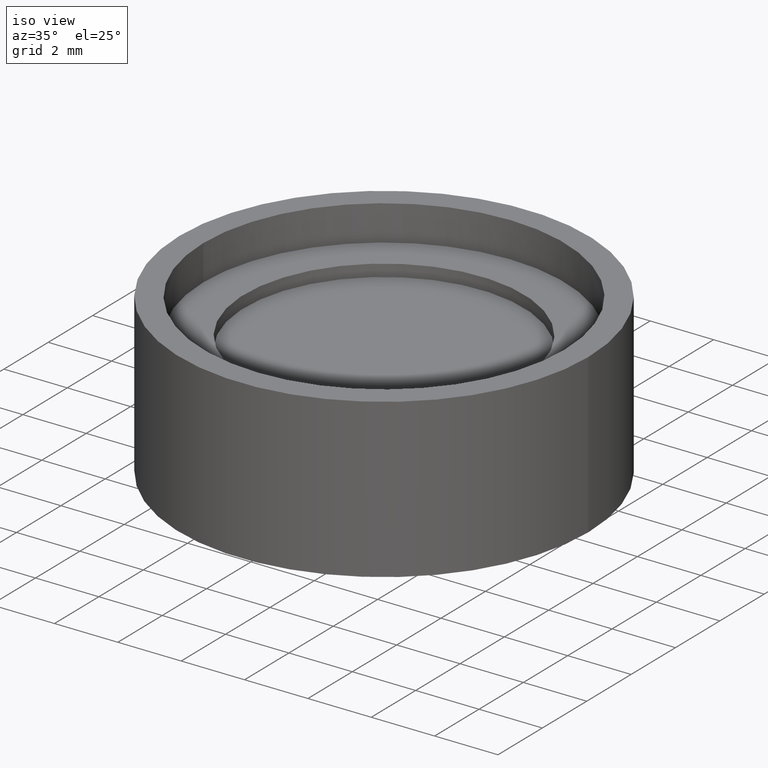
[diagram: clean part render]
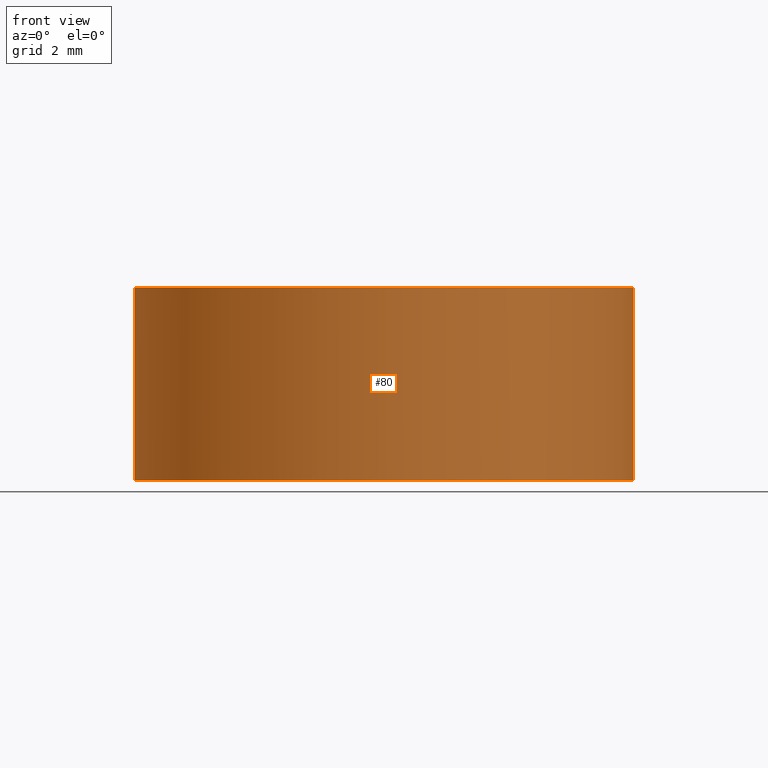
[diagram: tour spotlight — one face highlighted and labeled with its STEP entity id]
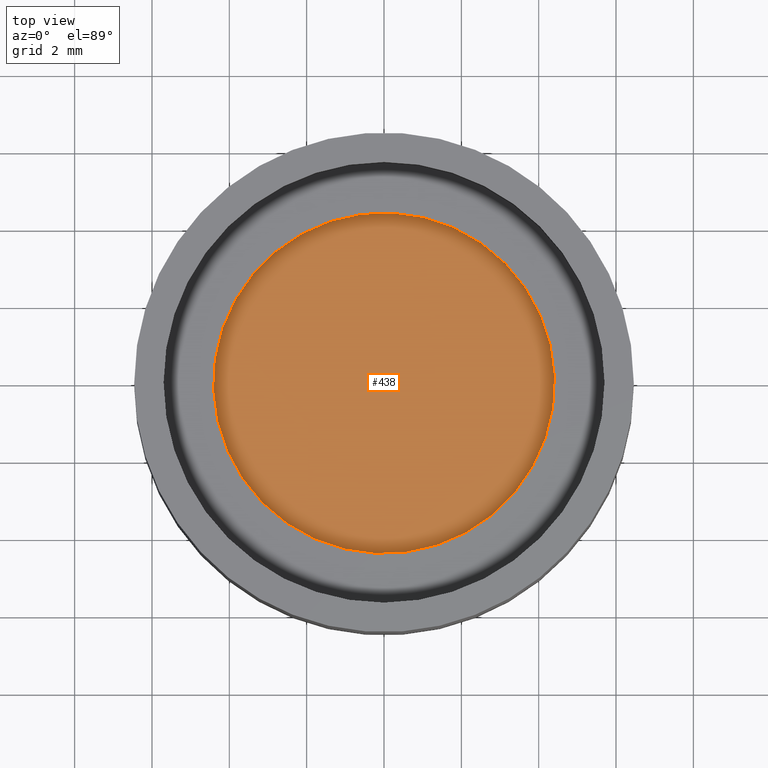
[diagram: tour spotlight — one face highlighted and labeled with its STEP entity id]
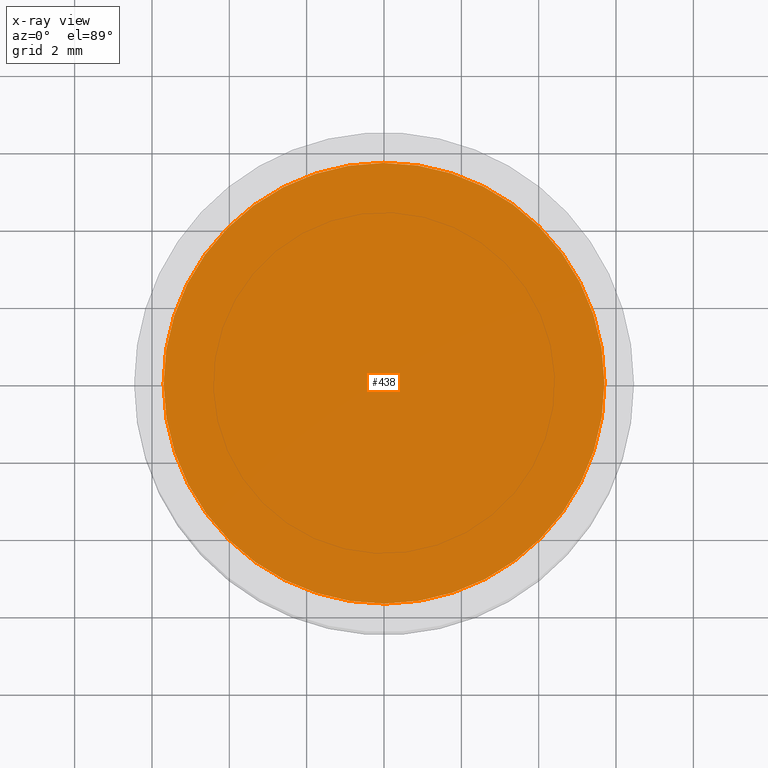
[diagram: x-ray of the same camera — body ghosted, this tour face saturated]
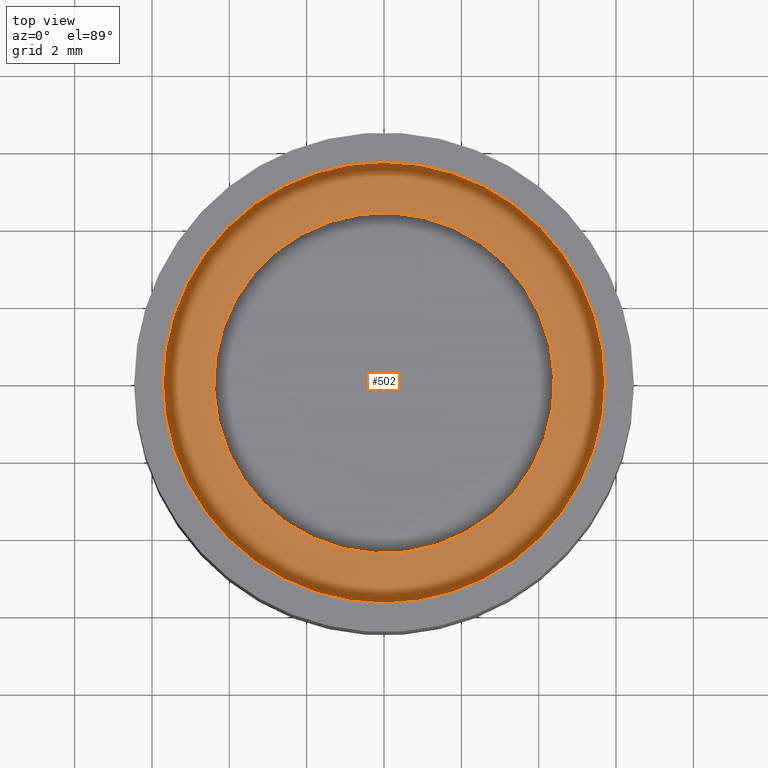
[diagram: tour spotlight — one face highlighted and labeled with its STEP entity id]
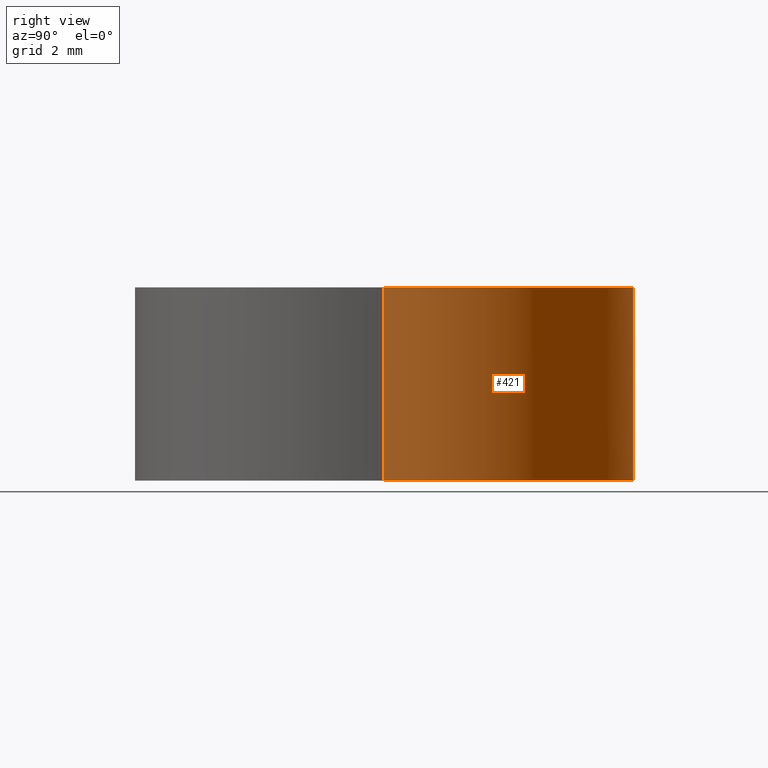
[diagram: tour spotlight — one face highlighted and labeled with its STEP entity id]
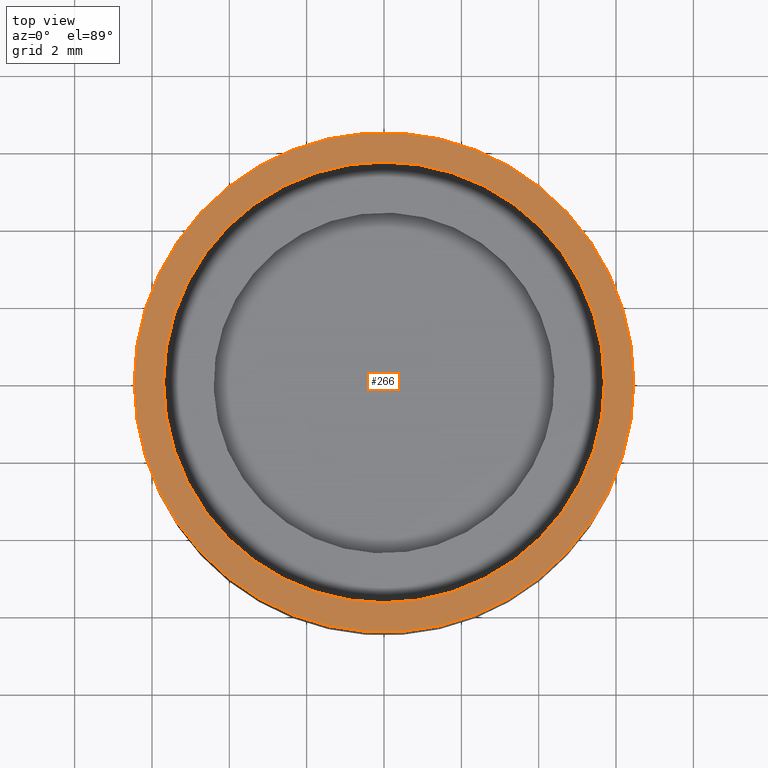
[diagram: tour spotlight — one face highlighted and labeled with its STEP entity id]
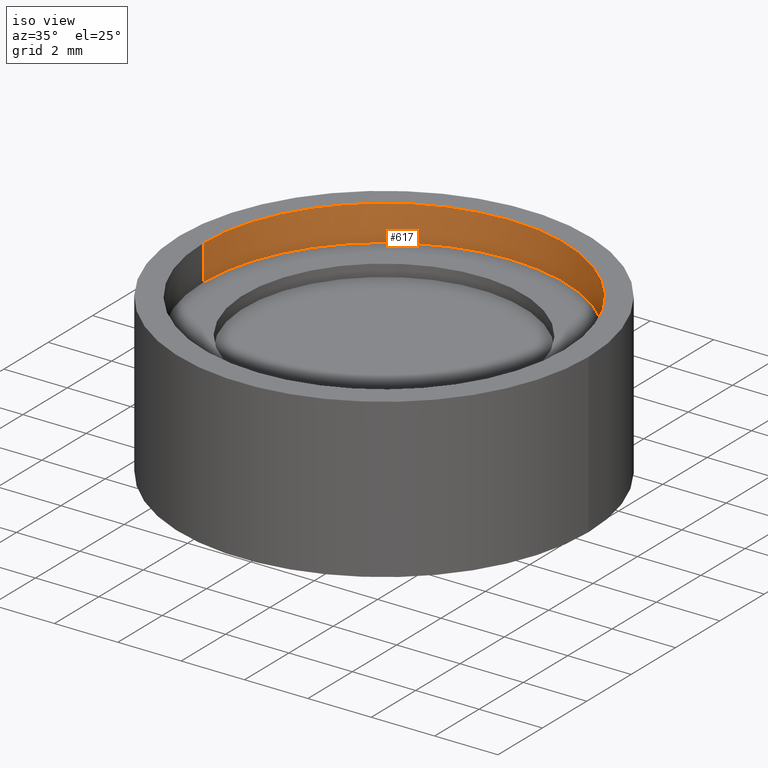
[diagram: tour spotlight — one face highlighted and labeled with its STEP entity id]
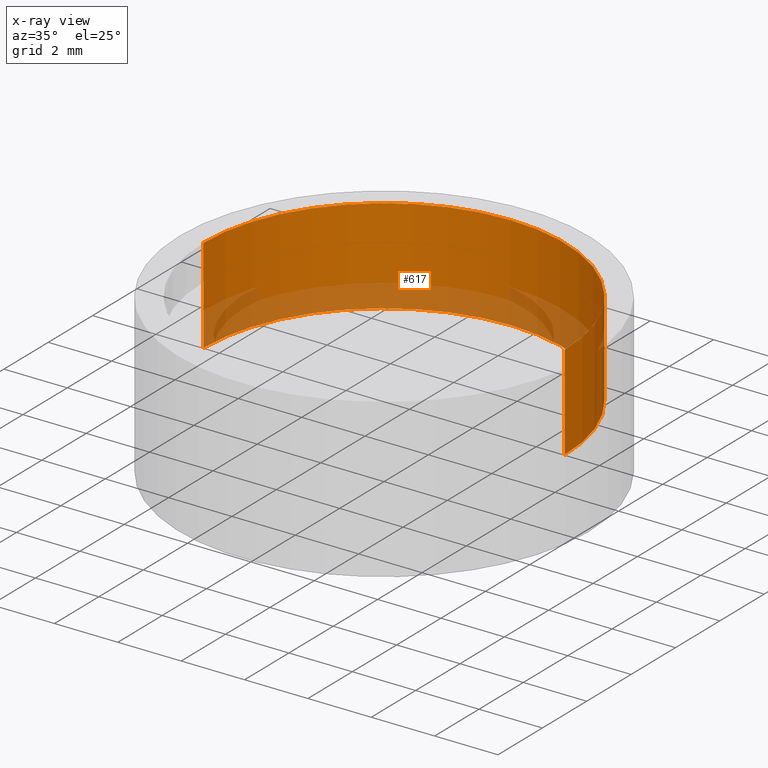
[diagram: x-ray of the same camera — body ghosted, this tour face saturated]
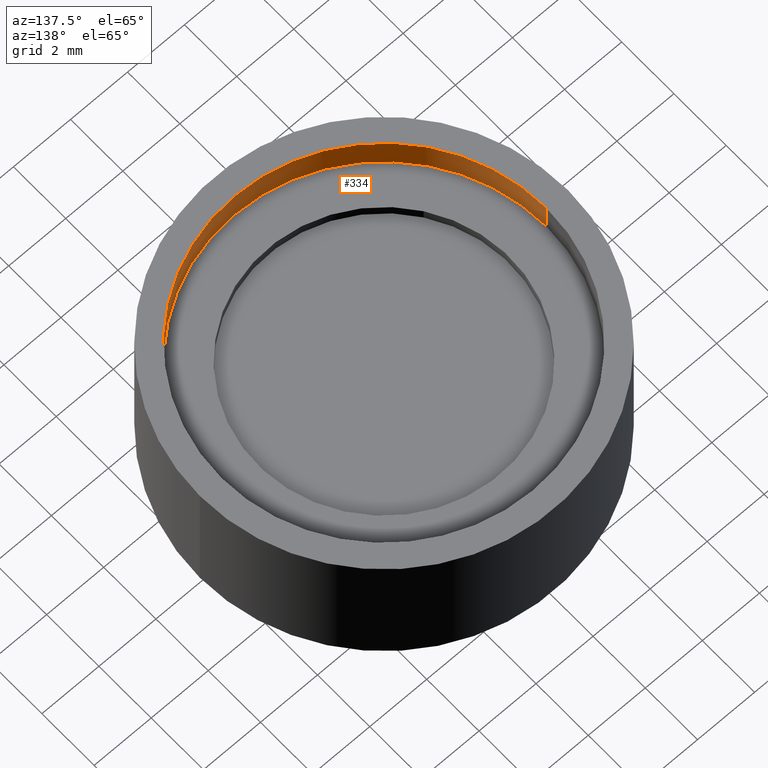
[diagram: tour spotlight — one face highlighted and labeled with its STEP entity id]
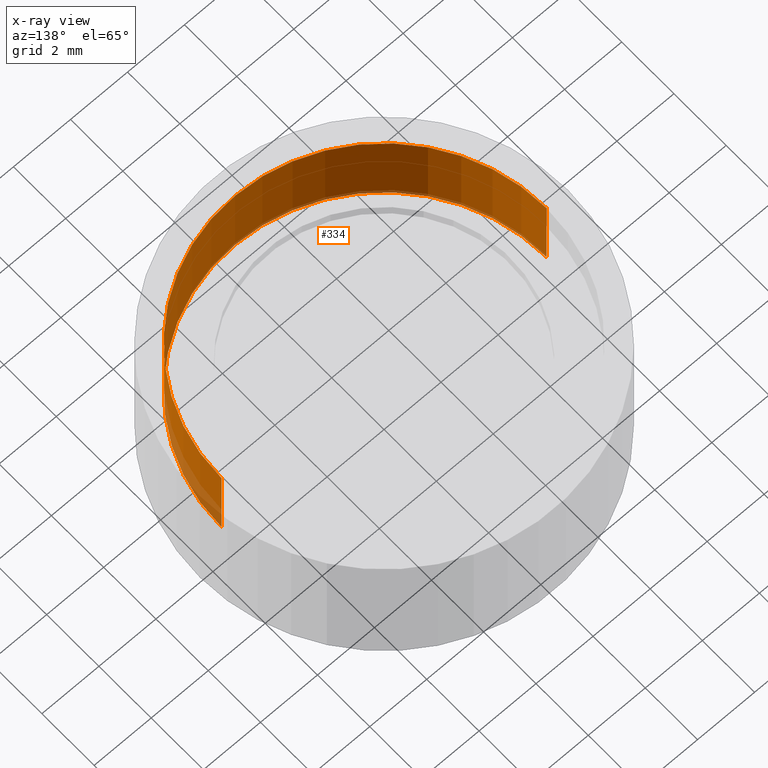
[diagram: x-ray of the same camera — body ghosted, this tour face saturated]
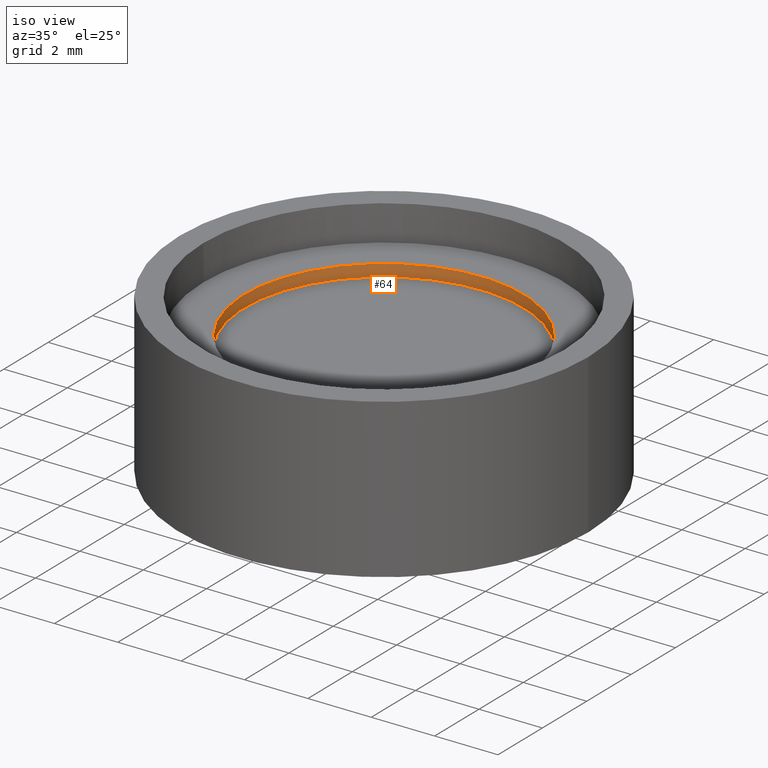
[diagram: tour spotlight — one face highlighted and labeled with its STEP entity id]
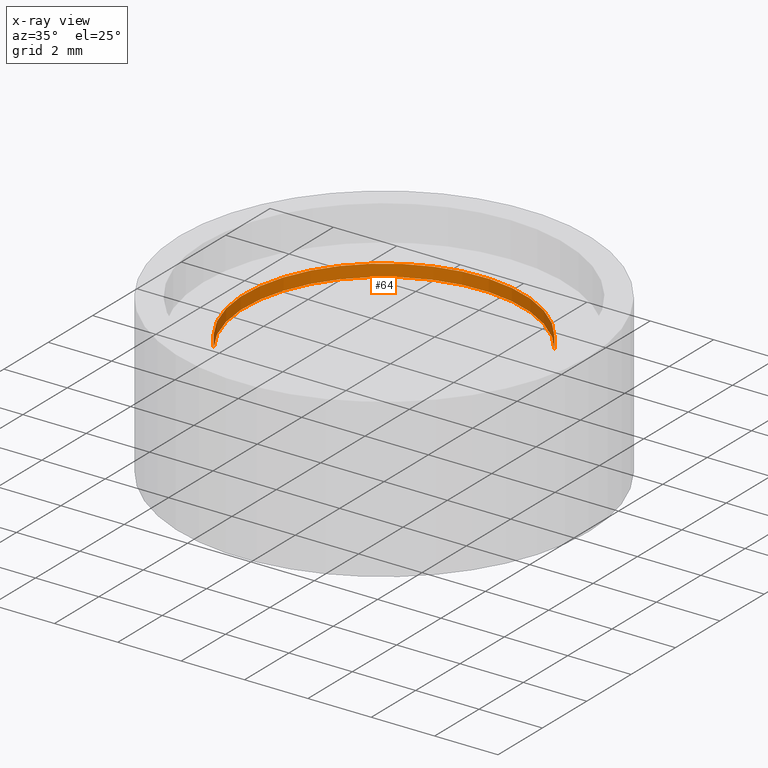
[diagram: x-ray of the same camera — body ghosted, this tour face saturated]
A machine part: a face-by-face anatomy tour. The part has 22 B-rep faces; the first image is the clean iso view, then the 8 largest visible faces are spotlighted one at a time (largest first), each with its STEP entity span.

Face 1 — front view, entity #80. In plain terms, the highlighted cylindrical surface (partial cylindrical patch) has radius 6.458 mm, axis along (-0, -0, -1).
Definition (entity closure, byte-faithful):
#19 = DIRECTION ( 'NONE',  ( -0.0000000000000000000, -0.0000000000000000000, -1.000000000000000000 ) ) ;
#35 = CYLINDRICAL_SURFACE ( 'NONE', #540, 6.458015859815825266 ) ;
#80 = ADVANCED_FACE ( 'NONE', ( #437 ), #35, .T. ) ;
#119 = EDGE_CURVE ( 'NONE', #293, #440, #479, .T. ) ;
#129 = ORIENTED_EDGE ( 'NONE', *, *, #179, .F. ) ;
#130 = DIRECTION ( 'NONE',  ( -1.000000000000000000, 0.0000000000000000000, 0.0000000000000000000 ) ) ;
#146 = ORIENTED_EDGE ( 'NONE', *, *, #196, .F. ) ;
#148 = EDGE_LOOP ( 'NONE', ( #129, #229, #333, #146 ) ) ;
#178 = DIRECTION ( 'NONE',  ( -0.0000000000000000000, -0.0000000000000000000, -1.000000000000000000 ) ) ;
#179 = EDGE_CURVE ( 'NONE', #293, #450, #422, .T. ) ;
#188 = CARTESIAN_POINT ( 'NONE',  ( -6.458015859815825266, 0.0000000000000000000, -1.695065087290339889 ) ) ;
#191 = DIRECTION ( 'NONE',  ( -1.000000000000000000, 0.0000000000000000000, 0.0000000000000000000 ) ) ;
#196 = EDGE_CURVE ( 'NONE', #450, #322, #571, .T. ) ;
#212 = EDGE_CURVE ( 'NONE', #440, #322, #640, .T. ) ;
#229 = ORIENTED_EDGE ( 'NONE', *, *, #119, .T. ) ;
#235 = CARTESIAN_POINT ( 'NONE',  ( 0.0000000000000000000, 0.0000000000000000000, 3.881000000000001560 ) ) ;
#239 = DIRECTION ( 'NONE',  ( -1.000000000000000000, 0.0000000000000000000, 0.0000000000000000000 ) ) ;
#242 = CARTESIAN_POINT ( 'NONE',  ( 0.0000000000000000000, 0.0000000000000000000, -1.695065087290339889 ) ) ;
#256 = CARTESIAN_POINT ( 'NONE',  ( 6.458015859815827042, 7.908788451566294723E-16, -1.118999999999997996 ) ) ;
#293 = VERTEX_POINT ( 'NONE', #465 ) ;
#322 = VERTEX_POINT ( 'NONE', #364 ) ;
#332 = CARTESIAN_POINT ( 'NONE',  ( 0.0000000000000000000, 0.0000000000000000000, -1.118999999999997996 ) ) ;
#333 = ORIENTED_EDGE ( 'NONE', *, *, #212, .T. ) ;
#364 = CARTESIAN_POINT ( 'NONE',  ( -6.458015859815826154, 0.0000000000000000000, -1.118999999999997996 ) ) ;
#383 = DIRECTION ( 'NONE',  ( -0.0000000000000000000, -0.0000000000000000000, -1.000000000000000000 ) ) ;
#422 = LINE ( 'NONE', #638, #522 ) ;
#424 = AXIS2_PLACEMENT_3D ( 'NONE', #332, #534, #239 ) ;
#437 = FACE_OUTER_BOUND ( 'NONE', #148, .T. ) ;
#440 = VERTEX_POINT ( 'NONE', #499 ) ;
#450 = VERTEX_POINT ( 'NONE', #256 ) ;
#454 = AXIS2_PLACEMENT_3D ( 'NONE', #235, #178, #130 ) ;
#465 = CARTESIAN_POINT ( 'NONE',  ( 6.458015859815825266, 7.908788451566292751E-16, 3.881000000000001560 ) ) ;
#467 = VECTOR ( 'NONE', #383, 1000.000000000000000 ) ;
#479 = CIRCLE ( 'NONE', #454, 6.458015859815825266 ) ;
#499 = CARTESIAN_POINT ( 'NONE',  ( -6.458015859815825266, 0.0000000000000000000, 3.881000000000001560 ) ) ;
#522 = VECTOR ( 'NONE', #19, 1000.000000000000000 ) ;
#534 = DIRECTION ( 'NONE',  ( -0.0000000000000000000, -0.0000000000000000000, -1.000000000000000000 ) ) ;
#540 = AXIS2_PLACEMENT_3D ( 'NONE', #242, #643, #191 ) ;
#571 = CIRCLE ( 'NONE', #424, 6.458015859815826154 ) ;
#638 = CARTESIAN_POINT ( 'NONE',  ( 6.458015859815825266, 7.908788451566292751E-16, -1.695065087290339889 ) ) ;
#640 = LINE ( 'NONE', #188, #467 ) ;
#643 = DIRECTION ( 'NONE',  ( -0.0000000000000000000, -0.0000000000000000000, -1.000000000000000000 ) ) ;

Face 2 — top view, entity #438. An x-ray twin of the same camera follows (body ghosted, this face saturated) — the face is partly hidden behind the body. In plain terms, the highlighted planar face has unit normal (0, -0, 1).
Definition (entity closure, byte-faithful):
#9 = CARTESIAN_POINT ( 'NONE',  ( 0.0000000000000000000, 0.0000000000000000000, 2.380999999999999339 ) ) ;
#45 = CARTESIAN_POINT ( 'NONE',  ( 0.0000000000000000000, 0.0000000000000000000, 2.380999999999999339 ) ) ;
#106 = DIRECTION ( 'NONE',  ( 0.8068447097065264417, 0.5907635858942145157, 0.0000000000000000000 ) ) ;
#143 = CIRCLE ( 'NONE', #458, 5.699999999999999289 ) ;
#149 = DIRECTION ( 'NONE',  ( 0.8068447097065265528, 0.5907635858942146267, 0.0000000000000000000 ) ) ;
#202 = DIRECTION ( 'NONE',  ( 0.8068447097065265528, 0.5907635858942146267, 0.0000000000000000000 ) ) ;
#209 = CARTESIAN_POINT ( 'NONE',  ( 0.0000000000000000000, 0.0000000000000000000, 2.380999999999999339 ) ) ;
#268 = FACE_OUTER_BOUND ( 'NONE', #594, .T. ) ;
#272 = VERTEX_POINT ( 'NONE', #457 ) ;
#307 = DIRECTION ( 'NONE',  ( 0.0000000000000000000, 0.0000000000000000000, 1.000000000000000000 ) ) ;
#310 = CIRCLE ( 'NONE', #481, 5.699999999999999289 ) ;
#357 = DIRECTION ( 'NONE',  ( 0.0000000000000000000, 0.0000000000000000000, 1.000000000000000000 ) ) ;
#359 = PLANE ( 'NONE',  #501 ) ;
#411 = EDGE_CURVE ( 'NONE', #496, #272, #310, .T. ) ;
#438 = ADVANCED_FACE ( 'NONE', ( #268 ), #359, .T. ) ;
#456 = ORIENTED_EDGE ( 'NONE', *, *, #411, .T. ) ;
#457 = CARTESIAN_POINT ( 'NONE',  ( -4.599014845327200618, -3.367352439597023128, 2.380999999999999339 ) ) ;
#458 = AXIS2_PLACEMENT_3D ( 'NONE', #45, #357, #149 ) ;
#481 = AXIS2_PLACEMENT_3D ( 'NONE', #209, #307, #202 ) ;
#496 = VERTEX_POINT ( 'NONE', #563 ) ;
#501 = AXIS2_PLACEMENT_3D ( 'NONE', #9, #558, #106 ) ;
#525 = ORIENTED_EDGE ( 'NONE', *, *, #561, .T. ) ;
#558 = DIRECTION ( 'NONE',  ( 0.0000000000000000000, -0.0000000000000000000, 1.000000000000000000 ) ) ;
#561 = EDGE_CURVE ( 'NONE', #272, #496, #143, .T. ) ;
#563 = CARTESIAN_POINT ( 'NONE',  ( 4.599014845327200618, 3.367352439597023572, 2.380999999999999339 ) ) ;
#594 = EDGE_LOOP ( 'NONE', ( #525, #456 ) ) ;

Face 3 — top view, entity #502. In plain terms, the highlighted planar face has unit normal (0, -0, 1).
Definition (entity closure, byte-faithful):
#28 = DIRECTION ( 'NONE',  ( 0.0000000000000000000, 0.0000000000000000000, 1.000000000000000000 ) ) ;
#32 = EDGE_CURVE ( 'NONE', #388, #641, #339, .T. ) ;
#59 = DIRECTION ( 'NONE',  ( 0.0000000000000000000, 0.0000000000000000000, 1.000000000000000000 ) ) ;
#68 = AXIS2_PLACEMENT_3D ( 'NONE', #446, #59, #652 ) ;
#72 = EDGE_CURVE ( 'NONE', #181, #529, #491, .T. ) ;
#76 = DIRECTION ( 'NONE',  ( 0.8284142084669521289, 0.5601159694296110603, 0.0000000000000000000 ) ) ;
#90 = DIRECTION ( 'NONE',  ( 0.8284142084669521289, 0.5601159694296110603, 0.0000000000000000000 ) ) ;
#101 = DIRECTION ( 'NONE',  ( 0.8284142084669522399, 0.5601159694296110603, 0.0000000000000000000 ) ) ;
#102 = EDGE_LOOP ( 'NONE', ( #198, #509 ) ) ;
#134 = EDGE_LOOP ( 'NONE', ( #420, #634 ) ) ;
#135 = DIRECTION ( 'NONE',  ( 0.0000000000000000000, 0.0000000000000000000, 1.000000000000000000 ) ) ;
#141 = DIRECTION ( 'NONE',  ( 0.8284142084669521289, 0.5601159694296110603, 0.0000000000000000000 ) ) ;
#150 = CARTESIAN_POINT ( 'NONE',  ( 0.0000000000000000000, 0.0000000000000000000, 2.762000000000000011 ) ) ;
#151 = EDGE_CURVE ( 'NONE', #529, #181, #168, .T. ) ;
#168 = CIRCLE ( 'NONE', #288, 4.406899999999999373 ) ;
#181 = VERTEX_POINT ( 'NONE', #185 ) ;
#185 = CARTESIAN_POINT ( 'NONE',  ( -3.650738575293011490, -2.468375065679352165, 2.762000000000000011 ) ) ;
#198 = ORIENTED_EDGE ( 'NONE', *, *, #497, .T. ) ;
#200 = FACE_OUTER_BOUND ( 'NONE', #102, .T. ) ;
#224 = CIRCLE ( 'NONE', #68, 5.714999999999998082 ) ;
#288 = AXIS2_PLACEMENT_3D ( 'NONE', #431, #135, #76 ) ;
#326 = CARTESIAN_POINT ( 'NONE',  ( 0.0000000000000000000, 0.0000000000000000000, 2.762000000000000011 ) ) ;
#339 = CIRCLE ( 'NONE', #413, 5.714999999999998082 ) ;
#349 = DIRECTION ( 'NONE',  ( 0.0000000000000000000, -0.0000000000000000000, 1.000000000000000000 ) ) ;
#382 = AXIS2_PLACEMENT_3D ( 'NONE', #150, #349, #101 ) ;
#388 = VERTEX_POINT ( 'NONE', #657 ) ;
#391 = CARTESIAN_POINT ( 'NONE',  ( 3.650738575293011046, 2.468375065679352609, 2.762000000000000011 ) ) ;
#393 = FACE_BOUND ( 'NONE', #134, .T. ) ;
#407 = CARTESIAN_POINT ( 'NONE',  ( 4.734387201388630118, 3.201062765290226153, 2.762000000000000011 ) ) ;
#413 = AXIS2_PLACEMENT_3D ( 'NONE', #326, #639, #141 ) ;
#420 = ORIENTED_EDGE ( 'NONE', *, *, #151, .F. ) ;
#431 = CARTESIAN_POINT ( 'NONE',  ( 0.0000000000000000000, 0.0000000000000000000, 2.762000000000000011 ) ) ;
#446 = CARTESIAN_POINT ( 'NONE',  ( 0.0000000000000000000, 0.0000000000000000000, 2.762000000000000011 ) ) ;
#466 = AXIS2_PLACEMENT_3D ( 'NONE', #537, #28, #90 ) ;
#491 = CIRCLE ( 'NONE', #466, 4.406899999999999373 ) ;
#497 = EDGE_CURVE ( 'NONE', #641, #388, #224, .T. ) ;
#502 = ADVANCED_FACE ( 'NONE', ( #200, #393 ), #599, .T. ) ;
#509 = ORIENTED_EDGE ( 'NONE', *, *, #32, .T. ) ;
#529 = VERTEX_POINT ( 'NONE', #391 ) ;
#537 = CARTESIAN_POINT ( 'NONE',  ( 0.0000000000000000000, 0.0000000000000000000, 2.762000000000000011 ) ) ;
#599 = PLANE ( 'NONE',  #382 ) ;
#634 = ORIENTED_EDGE ( 'NONE', *, *, #72, .F. ) ;
#639 = DIRECTION ( 'NONE',  ( 0.0000000000000000000, 0.0000000000000000000, 1.000000000000000000 ) ) ;
#641 = VERTEX_POINT ( 'NONE', #407 ) ;
#652 = DIRECTION ( 'NONE',  ( 0.8284142084669521289, 0.5601159694296110603, 0.0000000000000000000 ) ) ;
#657 = CARTESIAN_POINT ( 'NONE',  ( -4.734387201388630118, -3.201062765290225709, 2.762000000000000011 ) ) ;

Face 4 — right view, entity #421. In plain terms, the highlighted cylindrical surface (partial cylindrical patch) has radius 6.458 mm, axis along (-0, -0, -1).
Definition (entity closure, byte-faithful):
#19 = DIRECTION ( 'NONE',  ( -0.0000000000000000000, -0.0000000000000000000, -1.000000000000000000 ) ) ;
#111 = DIRECTION ( 'NONE',  ( -1.000000000000000000, 0.0000000000000000000, 0.0000000000000000000 ) ) ;
#115 = FACE_OUTER_BOUND ( 'NONE', #389, .T. ) ;
#157 = CARTESIAN_POINT ( 'NONE',  ( 0.0000000000000000000, 0.0000000000000000000, 3.881000000000001560 ) ) ;
#172 = CARTESIAN_POINT ( 'NONE',  ( 0.0000000000000000000, 0.0000000000000000000, -1.118999999999997996 ) ) ;
#179 = EDGE_CURVE ( 'NONE', #293, #450, #422, .T. ) ;
#187 = CIRCLE ( 'NONE', #352, 6.458015859815825266 ) ;
#188 = CARTESIAN_POINT ( 'NONE',  ( -6.458015859815825266, 0.0000000000000000000, -1.695065087290339889 ) ) ;
#212 = EDGE_CURVE ( 'NONE', #440, #322, #640, .T. ) ;
#256 = CARTESIAN_POINT ( 'NONE',  ( 6.458015859815827042, 7.908788451566294723E-16, -1.118999999999997996 ) ) ;
#260 = AXIS2_PLACEMENT_3D ( 'NONE', #314, #603, #354 ) ;
#293 = VERTEX_POINT ( 'NONE', #465 ) ;
#309 = CIRCLE ( 'NONE', #340, 6.458015859815826154 ) ;
#314 = CARTESIAN_POINT ( 'NONE',  ( 0.0000000000000000000, 0.0000000000000000000, -1.695065087290339889 ) ) ;
#322 = VERTEX_POINT ( 'NONE', #364 ) ;
#323 = EDGE_CURVE ( 'NONE', #322, #450, #309, .T. ) ;
#340 = AXIS2_PLACEMENT_3D ( 'NONE', #172, #559, #111 ) ;
#352 = AXIS2_PLACEMENT_3D ( 'NONE', #157, #355, #555 ) ;
#354 = DIRECTION ( 'NONE',  ( -1.000000000000000000, 0.0000000000000000000, 0.0000000000000000000 ) ) ;
#355 = DIRECTION ( 'NONE',  ( -0.0000000000000000000, -0.0000000000000000000, -1.000000000000000000 ) ) ;
#364 = CARTESIAN_POINT ( 'NONE',  ( -6.458015859815826154, 0.0000000000000000000, -1.118999999999997996 ) ) ;
#383 = DIRECTION ( 'NONE',  ( -0.0000000000000000000, -0.0000000000000000000, -1.000000000000000000 ) ) ;
#389 = EDGE_LOOP ( 'NONE', ( #442, #604, #493, #513 ) ) ;
#392 = EDGE_CURVE ( 'NONE', #440, #293, #187, .T. ) ;
#403 = CYLINDRICAL_SURFACE ( 'NONE', #260, 6.458015859815825266 ) ;
#421 = ADVANCED_FACE ( 'NONE', ( #115 ), #403, .T. ) ;
#422 = LINE ( 'NONE', #638, #522 ) ;
#440 = VERTEX_POINT ( 'NONE', #499 ) ;
#442 = ORIENTED_EDGE ( 'NONE', *, *, #392, .T. ) ;
#450 = VERTEX_POINT ( 'NONE', #256 ) ;
#465 = CARTESIAN_POINT ( 'NONE',  ( 6.458015859815825266, 7.908788451566292751E-16, 3.881000000000001560 ) ) ;
#467 = VECTOR ( 'NONE', #383, 1000.000000000000000 ) ;
#493 = ORIENTED_EDGE ( 'NONE', *, *, #323, .F. ) ;
#499 = CARTESIAN_POINT ( 'NONE',  ( -6.458015859815825266, 0.0000000000000000000, 3.881000000000001560 ) ) ;
#513 = ORIENTED_EDGE ( 'NONE', *, *, #212, .F. ) ;
#522 = VECTOR ( 'NONE', #19, 1000.000000000000000 ) ;
#555 = DIRECTION ( 'NONE',  ( -1.000000000000000000, 0.0000000000000000000, 0.0000000000000000000 ) ) ;
#559 = DIRECTION ( 'NONE',  ( -0.0000000000000000000, -0.0000000000000000000, -1.000000000000000000 ) ) ;
#603 = DIRECTION ( 'NONE',  ( -0.0000000000000000000, -0.0000000000000000000, -1.000000000000000000 ) ) ;
#604 = ORIENTED_EDGE ( 'NONE', *, *, #179, .T. ) ;
#638 = CARTESIAN_POINT ( 'NONE',  ( 6.458015859815825266, 7.908788451566292751E-16, -1.695065087290339889 ) ) ;
#640 = LINE ( 'NONE', #188, #467 ) ;

Face 5 — top view, entity #266. In plain terms, the highlighted planar face has unit normal (0, 0, 1).
Definition (entity closure, byte-faithful):
#30 = DIRECTION ( 'NONE',  ( -1.000000000000000000, 0.0000000000000000000, 0.0000000000000000000 ) ) ;
#75 = ORIENTED_EDGE ( 'NONE', *, *, #173, .T. ) ;
#119 = EDGE_CURVE ( 'NONE', #293, #440, #479, .T. ) ;
#130 = DIRECTION ( 'NONE',  ( -1.000000000000000000, 0.0000000000000000000, 0.0000000000000000000 ) ) ;
#138 = DIRECTION ( 'NONE',  ( -1.000000000000000000, 0.0000000000000000000, 0.0000000000000000000 ) ) ;
#157 = CARTESIAN_POINT ( 'NONE',  ( 0.0000000000000000000, 0.0000000000000000000, 3.881000000000001560 ) ) ;
#173 = EDGE_CURVE ( 'NONE', #387, #345, #498, .T. ) ;
#178 = DIRECTION ( 'NONE',  ( -0.0000000000000000000, -0.0000000000000000000, -1.000000000000000000 ) ) ;
#187 = CIRCLE ( 'NONE', #352, 6.458015859815825266 ) ;
#192 = EDGE_CURVE ( 'NONE', #345, #387, #241, .T. ) ;
#195 = AXIS2_PLACEMENT_3D ( 'NONE', #377, #325, #138 ) ;
#211 = DIRECTION ( 'NONE',  ( 0.0000000000000000000, 0.0000000000000000000, 1.000000000000000000 ) ) ;
#221 = AXIS2_PLACEMENT_3D ( 'NONE', #486, #584, #30 ) ;
#223 = AXIS2_PLACEMENT_3D ( 'NONE', #567, #211, #520 ) ;
#235 = CARTESIAN_POINT ( 'NONE',  ( 0.0000000000000000000, 0.0000000000000000000, 3.881000000000001560 ) ) ;
#241 = CIRCLE ( 'NONE', #195, 5.699999999999999289 ) ;
#258 = PLANE ( 'NONE',  #223 ) ;
#266 = ADVANCED_FACE ( 'NONE', ( #462, #360 ), #258, .T. ) ;
#290 = ORIENTED_EDGE ( 'NONE', *, *, #392, .F. ) ;
#293 = VERTEX_POINT ( 'NONE', #465 ) ;
#294 = EDGE_LOOP ( 'NONE', ( #460, #75 ) ) ;
#325 = DIRECTION ( 'NONE',  ( -0.0000000000000000000, -0.0000000000000000000, -1.000000000000000000 ) ) ;
#345 = VERTEX_POINT ( 'NONE', #368 ) ;
#352 = AXIS2_PLACEMENT_3D ( 'NONE', #157, #355, #555 ) ;
#355 = DIRECTION ( 'NONE',  ( -0.0000000000000000000, -0.0000000000000000000, -1.000000000000000000 ) ) ;
#360 = FACE_OUTER_BOUND ( 'NONE', #575, .T. ) ;
#368 = CARTESIAN_POINT ( 'NONE',  ( -5.699999999999999289, 0.0000000000000000000, 3.881000000000001560 ) ) ;
#377 = CARTESIAN_POINT ( 'NONE',  ( 0.0000000000000000000, 0.0000000000000000000, 3.881000000000001560 ) ) ;
#387 = VERTEX_POINT ( 'NONE', #451 ) ;
#392 = EDGE_CURVE ( 'NONE', #440, #293, #187, .T. ) ;
#440 = VERTEX_POINT ( 'NONE', #499 ) ;
#451 = CARTESIAN_POINT ( 'NONE',  ( 5.699999999999999289, 6.980486755139912122E-16, 3.881000000000001560 ) ) ;
#454 = AXIS2_PLACEMENT_3D ( 'NONE', #235, #178, #130 ) ;
#460 = ORIENTED_EDGE ( 'NONE', *, *, #192, .T. ) ;
#462 = FACE_BOUND ( 'NONE', #294, .T. ) ;
#465 = CARTESIAN_POINT ( 'NONE',  ( 6.458015859815825266, 7.908788451566292751E-16, 3.881000000000001560 ) ) ;
#479 = CIRCLE ( 'NONE', #454, 6.458015859815825266 ) ;
#486 = CARTESIAN_POINT ( 'NONE',  ( 0.0000000000000000000, 0.0000000000000000000, 3.881000000000001560 ) ) ;
#498 = CIRCLE ( 'NONE', #221, 5.699999999999999289 ) ;
#499 = CARTESIAN_POINT ( 'NONE',  ( -6.458015859815825266, 0.0000000000000000000, 3.881000000000001560 ) ) ;
#505 = ORIENTED_EDGE ( 'NONE', *, *, #119, .F. ) ;
#520 = DIRECTION ( 'NONE',  ( 1.000000000000000000, 0.0000000000000000000, -0.0000000000000000000 ) ) ;
#555 = DIRECTION ( 'NONE',  ( -1.000000000000000000, 0.0000000000000000000, 0.0000000000000000000 ) ) ;
#567 = CARTESIAN_POINT ( 'NONE',  ( -6.458015859815825266, 0.0000000000000000000, 3.881000000000002004 ) ) ;
#575 = EDGE_LOOP ( 'NONE', ( #290, #505 ) ) ;
#584 = DIRECTION ( 'NONE',  ( -0.0000000000000000000, -0.0000000000000000000, -1.000000000000000000 ) ) ;

Face 6 — iso view, entity #617. An x-ray twin of the same camera follows (body ghosted, this face saturated) — the face is partly hidden behind the body. In plain terms, the highlighted cylindrical surface (partial cylindrical patch) has radius 5.7 mm, axis along (-0, -0, -1).
Definition (entity closure, byte-faithful):
#38 = VERTEX_POINT ( 'NONE', #490 ) ;
#39 = ORIENTED_EDGE ( 'NONE', *, *, #406, .T. ) ;
#42 = VECTOR ( 'NONE', #215, 1000.000000000000000 ) ;
#46 = LINE ( 'NONE', #165, #444 ) ;
#48 = DIRECTION ( 'NONE',  ( -0.0000000000000000000, -0.0000000000000000000, -1.000000000000000000 ) ) ;
#62 = FACE_OUTER_BOUND ( 'NONE', #495, .T. ) ;
#120 = CARTESIAN_POINT ( 'NONE',  ( -5.700000000000000178, 0.0000000000000000000, 0.8809999999999997833 ) ) ;
#126 = AXIS2_PLACEMENT_3D ( 'NONE', #213, #48, #250 ) ;
#131 = ORIENTED_EDGE ( 'NONE', *, *, #192, .F. ) ;
#138 = DIRECTION ( 'NONE',  ( -1.000000000000000000, 0.0000000000000000000, 0.0000000000000000000 ) ) ;
#165 = CARTESIAN_POINT ( 'NONE',  ( -5.700000000000000178, 0.0000000000000000000, -1.695065087290339889 ) ) ;
#192 = EDGE_CURVE ( 'NONE', #345, #387, #241, .T. ) ;
#195 = AXIS2_PLACEMENT_3D ( 'NONE', #377, #325, #138 ) ;
#213 = CARTESIAN_POINT ( 'NONE',  ( 0.0000000000000000000, 0.0000000000000000000, -1.695065087290339889 ) ) ;
#215 = DIRECTION ( 'NONE',  ( -0.0000000000000000000, -0.0000000000000000000, -1.000000000000000000 ) ) ;
#216 = DIRECTION ( 'NONE',  ( -0.0000000000000000000, -0.0000000000000000000, -1.000000000000000000 ) ) ;
#241 = CIRCLE ( 'NONE', #195, 5.699999999999999289 ) ;
#250 = DIRECTION ( 'NONE',  ( -1.000000000000000000, 0.0000000000000000000, 0.0000000000000000000 ) ) ;
#263 = LINE ( 'NONE', #461, #42 ) ;
#276 = ORIENTED_EDGE ( 'NONE', *, *, #488, .F. ) ;
#317 = CARTESIAN_POINT ( 'NONE',  ( 0.0000000000000000000, 0.0000000000000000000, 0.8809999999999997833 ) ) ;
#325 = DIRECTION ( 'NONE',  ( -0.0000000000000000000, -0.0000000000000000000, -1.000000000000000000 ) ) ;
#345 = VERTEX_POINT ( 'NONE', #368 ) ;
#368 = CARTESIAN_POINT ( 'NONE',  ( -5.699999999999999289, 0.0000000000000000000, 3.881000000000001560 ) ) ;
#371 = VERTEX_POINT ( 'NONE', #120 ) ;
#374 = EDGE_CURVE ( 'NONE', #371, #38, #619, .T. ) ;
#377 = CARTESIAN_POINT ( 'NONE',  ( 0.0000000000000000000, 0.0000000000000000000, 3.881000000000001560 ) ) ;
#387 = VERTEX_POINT ( 'NONE', #451 ) ;
#401 = CYLINDRICAL_SURFACE ( 'NONE', #126, 5.700000000000000178 ) ;
#406 = EDGE_CURVE ( 'NONE', #345, #371, #46, .T. ) ;
#416 = AXIS2_PLACEMENT_3D ( 'NONE', #317, #216, #615 ) ;
#444 = VECTOR ( 'NONE', #464, 1000.000000000000000 ) ;
#451 = CARTESIAN_POINT ( 'NONE',  ( 5.699999999999999289, 6.980486755139912122E-16, 3.881000000000001560 ) ) ;
#461 = CARTESIAN_POINT ( 'NONE',  ( 5.700000000000000178, 6.980486755139913108E-16, -1.695065087290339889 ) ) ;
#464 = DIRECTION ( 'NONE',  ( -0.0000000000000000000, -0.0000000000000000000, -1.000000000000000000 ) ) ;
#488 = EDGE_CURVE ( 'NONE', #387, #38, #263, .T. ) ;
#490 = CARTESIAN_POINT ( 'NONE',  ( 5.700000000000000178, 6.980486755139913108E-16, 0.8809999999999997833 ) ) ;
#495 = EDGE_LOOP ( 'NONE', ( #276, #131, #39, #562 ) ) ;
#562 = ORIENTED_EDGE ( 'NONE', *, *, #374, .T. ) ;
#615 = DIRECTION ( 'NONE',  ( -1.000000000000000000, 0.0000000000000000000, 0.0000000000000000000 ) ) ;
#617 = ADVANCED_FACE ( 'NONE', ( #62 ), #401, .F. ) ;
#619 = CIRCLE ( 'NONE', #416, 5.700000000000000178 ) ;

Face 7 — auxiliary view, entity #334. An x-ray twin of the same camera follows (body ghosted, this face saturated) — the face is partly hidden behind the body. In plain terms, the highlighted cylindrical surface (partial cylindrical patch) has radius 5.7 mm, axis along (-0, -0, -1).
Definition (entity closure, byte-faithful):
#30 = DIRECTION ( 'NONE',  ( -1.000000000000000000, 0.0000000000000000000, 0.0000000000000000000 ) ) ;
#37 = ORIENTED_EDGE ( 'NONE', *, *, #173, .F. ) ;
#38 = VERTEX_POINT ( 'NONE', #490 ) ;
#41 = AXIS2_PLACEMENT_3D ( 'NONE', #142, #186, #539 ) ;
#42 = VECTOR ( 'NONE', #215, 1000.000000000000000 ) ;
#46 = LINE ( 'NONE', #165, #444 ) ;
#57 = CYLINDRICAL_SURFACE ( 'NONE', #365, 5.700000000000000178 ) ;
#92 = EDGE_CURVE ( 'NONE', #38, #371, #627, .T. ) ;
#120 = CARTESIAN_POINT ( 'NONE',  ( -5.700000000000000178, 0.0000000000000000000, 0.8809999999999997833 ) ) ;
#142 = CARTESIAN_POINT ( 'NONE',  ( 0.0000000000000000000, 0.0000000000000000000, 0.8809999999999997833 ) ) ;
#165 = CARTESIAN_POINT ( 'NONE',  ( -5.700000000000000178, 0.0000000000000000000, -1.695065087290339889 ) ) ;
#173 = EDGE_CURVE ( 'NONE', #387, #345, #498, .T. ) ;
#186 = DIRECTION ( 'NONE',  ( -0.0000000000000000000, -0.0000000000000000000, -1.000000000000000000 ) ) ;
#215 = DIRECTION ( 'NONE',  ( -0.0000000000000000000, -0.0000000000000000000, -1.000000000000000000 ) ) ;
#221 = AXIS2_PLACEMENT_3D ( 'NONE', #486, #584, #30 ) ;
#253 = CARTESIAN_POINT ( 'NONE',  ( 0.0000000000000000000, 0.0000000000000000000, -1.695065087290339889 ) ) ;
#263 = LINE ( 'NONE', #461, #42 ) ;
#265 = DIRECTION ( 'NONE',  ( -0.0000000000000000000, -0.0000000000000000000, -1.000000000000000000 ) ) ;
#306 = EDGE_LOOP ( 'NONE', ( #37, #358, #597, #434 ) ) ;
#334 = ADVANCED_FACE ( 'NONE', ( #516 ), #57, .F. ) ;
#345 = VERTEX_POINT ( 'NONE', #368 ) ;
#358 = ORIENTED_EDGE ( 'NONE', *, *, #488, .T. ) ;
#365 = AXIS2_PLACEMENT_3D ( 'NONE', #253, #265, #511 ) ;
#368 = CARTESIAN_POINT ( 'NONE',  ( -5.699999999999999289, 0.0000000000000000000, 3.881000000000001560 ) ) ;
#371 = VERTEX_POINT ( 'NONE', #120 ) ;
#387 = VERTEX_POINT ( 'NONE', #451 ) ;
#406 = EDGE_CURVE ( 'NONE', #345, #371, #46, .T. ) ;
#434 = ORIENTED_EDGE ( 'NONE', *, *, #406, .F. ) ;
#444 = VECTOR ( 'NONE', #464, 1000.000000000000000 ) ;
#451 = CARTESIAN_POINT ( 'NONE',  ( 5.699999999999999289, 6.980486755139912122E-16, 3.881000000000001560 ) ) ;
#461 = CARTESIAN_POINT ( 'NONE',  ( 5.700000000000000178, 6.980486755139913108E-16, -1.695065087290339889 ) ) ;
#464 = DIRECTION ( 'NONE',  ( -0.0000000000000000000, -0.0000000000000000000, -1.000000000000000000 ) ) ;
#486 = CARTESIAN_POINT ( 'NONE',  ( 0.0000000000000000000, 0.0000000000000000000, 3.881000000000001560 ) ) ;
#488 = EDGE_CURVE ( 'NONE', #387, #38, #263, .T. ) ;
#490 = CARTESIAN_POINT ( 'NONE',  ( 5.700000000000000178, 6.980486755139913108E-16, 0.8809999999999997833 ) ) ;
#498 = CIRCLE ( 'NONE', #221, 5.699999999999999289 ) ;
#511 = DIRECTION ( 'NONE',  ( -1.000000000000000000, 0.0000000000000000000, 0.0000000000000000000 ) ) ;
#516 = FACE_OUTER_BOUND ( 'NONE', #306, .T. ) ;
#539 = DIRECTION ( 'NONE',  ( -1.000000000000000000, 0.0000000000000000000, 0.0000000000000000000 ) ) ;
#584 = DIRECTION ( 'NONE',  ( -0.0000000000000000000, -0.0000000000000000000, -1.000000000000000000 ) ) ;
#597 = ORIENTED_EDGE ( 'NONE', *, *, #92, .T. ) ;
#627 = CIRCLE ( 'NONE', #41, 5.700000000000000178 ) ;

Face 8 — iso view, entity #64. An x-ray twin of the same camera follows (body ghosted, this face saturated) — the face is partly hidden behind the body. In plain terms, the highlighted cylindrical surface (partial cylindrical patch) has radius 4.4069 mm, axis along (0, 0, 1).
Definition (entity closure, byte-faithful):
#1 = VERTEX_POINT ( 'NONE', #535 ) ;
#52 = DIRECTION ( 'NONE',  ( 0.0000000000000000000, 0.0000000000000000000, 1.000000000000000000 ) ) ;
#64 = ADVANCED_FACE ( 'NONE', ( #527 ), #286, .F. ) ;
#66 = VECTOR ( 'NONE', #630, 1000.000000000000000 ) ;
#76 = DIRECTION ( 'NONE',  ( 0.8284142084669521289, 0.5601159694296110603, 0.0000000000000000000 ) ) ;
#77 = DIRECTION ( 'NONE',  ( 0.0000000000000000000, 0.0000000000000000000, 1.000000000000000000 ) ) ;
#135 = DIRECTION ( 'NONE',  ( 0.0000000000000000000, 0.0000000000000000000, 1.000000000000000000 ) ) ;
#151 = EDGE_CURVE ( 'NONE', #529, #181, #168, .T. ) ;
#152 = ORIENTED_EDGE ( 'NONE', *, *, #169, .T. ) ;
#168 = CIRCLE ( 'NONE', #288, 4.406899999999999373 ) ;
#169 = EDGE_CURVE ( 'NONE', #1, #529, #182, .T. ) ;
#175 = ORIENTED_EDGE ( 'NONE', *, *, #271, .F. ) ;
#181 = VERTEX_POINT ( 'NONE', #185 ) ;
#182 = LINE ( 'NONE', #577, #66 ) ;
#185 = CARTESIAN_POINT ( 'NONE',  ( -3.650738575293011490, -2.468375065679352165, 2.762000000000000011 ) ) ;
#219 = CARTESIAN_POINT ( 'NONE',  ( 0.0000000000000000000, 0.0000000000000000000, 2.381000000000000227 ) ) ;
#252 = VERTEX_POINT ( 'NONE', #338 ) ;
#271 = EDGE_CURVE ( 'NONE', #1, #252, #564, .T. ) ;
#283 = CARTESIAN_POINT ( 'NONE',  ( 0.0000000000000000000, 0.0000000000000000000, 2.381000000000000227 ) ) ;
#286 = CYLINDRICAL_SURFACE ( 'NONE', #348, 4.406899999999999373 ) ;
#288 = AXIS2_PLACEMENT_3D ( 'NONE', #431, #135, #76 ) ;
#292 = ORIENTED_EDGE ( 'NONE', *, *, #474, .F. ) ;
#336 = DIRECTION ( 'NONE',  ( 0.8284142084669521289, 0.5601159694296110603, 0.0000000000000000000 ) ) ;
#338 = CARTESIAN_POINT ( 'NONE',  ( -3.650738575293011490, -2.468375065679352165, 2.381000000000000227 ) ) ;
#348 = AXIS2_PLACEMENT_3D ( 'NONE', #283, #77, #336 ) ;
#391 = CARTESIAN_POINT ( 'NONE',  ( 3.650738575293011046, 2.468375065679352609, 2.762000000000000011 ) ) ;
#414 = DIRECTION ( 'NONE',  ( 0.8284142084669521289, 0.5601159694296110603, 0.0000000000000000000 ) ) ;
#426 = EDGE_LOOP ( 'NONE', ( #292, #175, #152, #453 ) ) ;
#431 = CARTESIAN_POINT ( 'NONE',  ( 0.0000000000000000000, 0.0000000000000000000, 2.762000000000000011 ) ) ;
#453 = ORIENTED_EDGE ( 'NONE', *, *, #151, .T. ) ;
#474 = EDGE_CURVE ( 'NONE', #252, #181, #504, .T. ) ;
#504 = LINE ( 'NONE', #510, #533 ) ;
#510 = CARTESIAN_POINT ( 'NONE',  ( -3.650738575293011490, -2.468375065679352165, 2.381000000000000227 ) ) ;
#518 = DIRECTION ( 'NONE',  ( 0.0000000000000000000, 0.0000000000000000000, 1.000000000000000000 ) ) ;
#527 = FACE_OUTER_BOUND ( 'NONE', #426, .T. ) ;
#529 = VERTEX_POINT ( 'NONE', #391 ) ;
#533 = VECTOR ( 'NONE', #518, 1000.000000000000000 ) ;
#535 = CARTESIAN_POINT ( 'NONE',  ( 3.650738575293011046, 2.468375065679352609, 2.381000000000000227 ) ) ;
#564 = CIRCLE ( 'NONE', #592, 4.406899999999999373 ) ;
#577 = CARTESIAN_POINT ( 'NONE',  ( 3.650738575293011046, 2.468375065679352609, 2.381000000000000227 ) ) ;
#592 = AXIS2_PLACEMENT_3D ( 'NONE', #219, #52, #414 ) ;
#630 = DIRECTION ( 'NONE',  ( 0.0000000000000000000, 0.0000000000000000000, 1.000000000000000000 ) ) ;